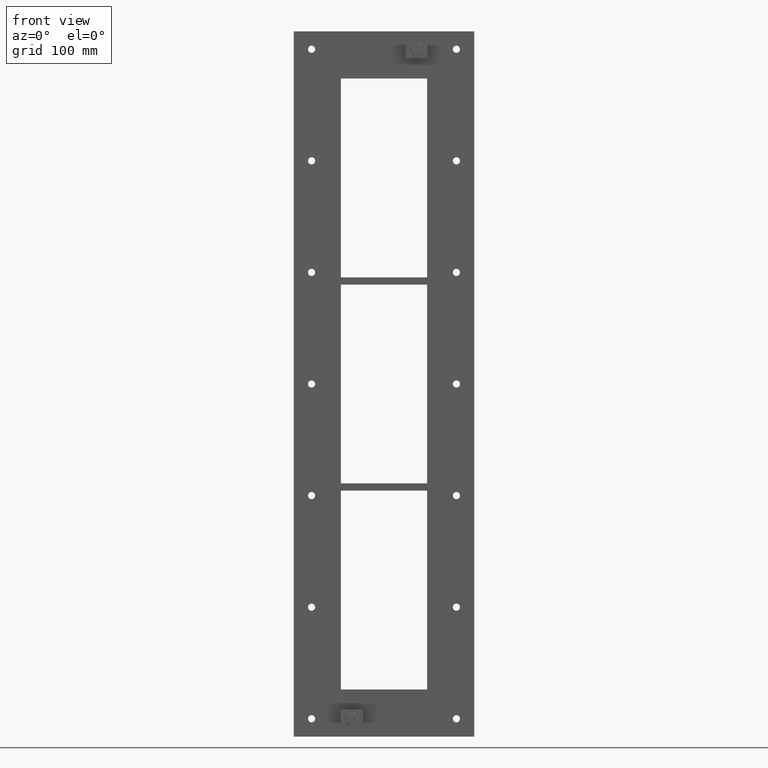
[diagram: clean part render]
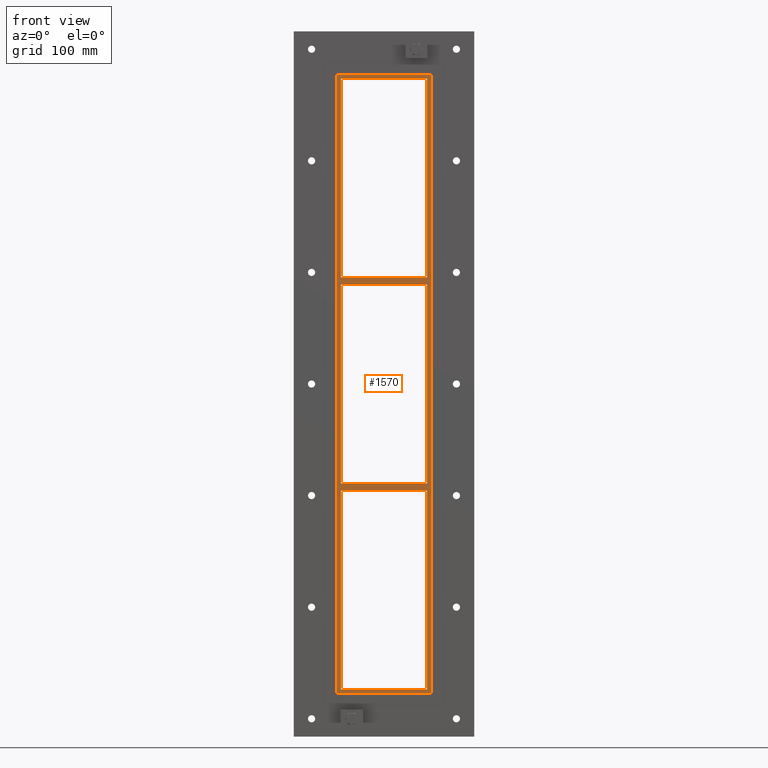
[diagram: same view with one face highlighted and labeled with its STEP entity id]
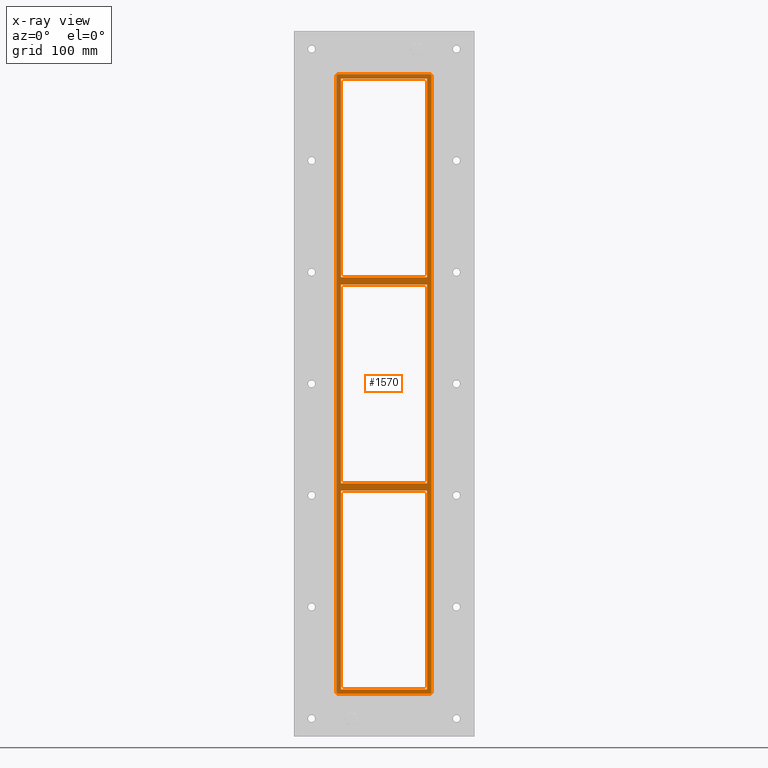
[diagram: x-ray of the same camera — body ghosted, the highlighted face saturated]
A machine part, front view. The second image highlights one B-rep face of the part: STEP entity #1570.
The next image is the same camera in x-ray: the body ghosted, the highlighted face saturated — about 0% of this face is hidden behind the body in this view.
In plain terms, the highlighted planar face has unit normal (0, 1, 0).
Its self-contained STEP definition (entity closure, byte-faithful):
#465=CARTESIAN_POINT('',(60.249999999996362,-3.0,138.99999999998903));
#466=VERTEX_POINT('',#465);
#467=CARTESIAN_POINT('',(-60.249999999998735,-3.0,138.99999999998886));
#468=VERTEX_POINT('',#467);
#469=CARTESIAN_POINT('',(60.249999999996362,-3.0,138.99999999998903));
#470=DIRECTION('',(-1.0,0.0,0.0));
#471=VECTOR('',#470,120.49999999999511);
#472=LINE('',#469,#471);
#473=EDGE_CURVE('',#466,#468,#472,.T.);
#505=CARTESIAN_POINT('',(-60.249999999998735,-3.0,149.00000000000023));
#506=VERTEX_POINT('',#505);
#507=CARTESIAN_POINT('',(60.249999999999595,-3.0,149.00000000000023));
#508=VERTEX_POINT('',#507);
#509=CARTESIAN_POINT('',(-60.249999999998735,-3.0,149.00000000000023));
#510=DIRECTION('',(1.0,0.0,0.0));
#511=VECTOR('',#510,120.49999999999834);
#512=LINE('',#509,#511);
#513=EDGE_CURVE('',#506,#508,#512,.T.);
#554=CARTESIAN_POINT('',(-60.25,-3.0,427.0));
#555=VERTEX_POINT('',#554);
#562=CARTESIAN_POINT('',(-60.25,-3.0,149.00000000000028));
#563=DIRECTION('',(0.0,0.0,1.0));
#564=VECTOR('',#563,277.99999999999983);
#565=LINE('',#562,#564);
#566=EDGE_CURVE('',#506,#555,#565,.T.);
#585=CARTESIAN_POINT('',(60.249999999999595,-3.0,-138.99999999999977));
#586=VERTEX_POINT('',#585);
#593=CARTESIAN_POINT('',(60.25,-3.0,138.99999999998906));
#594=DIRECTION('',(0.0,0.0,-1.0));
#595=VECTOR('',#594,277.99999999998886);
#596=LINE('',#593,#595);
#597=EDGE_CURVE('',#466,#586,#596,.T.);
#608=CARTESIAN_POINT('',(60.25,-3.0,427.0));
#609=VERTEX_POINT('',#608);
#610=CARTESIAN_POINT('',(60.25,-3.0,427.0));
#611=DIRECTION('',(0.0,0.0,-1.0));
#612=VECTOR('',#611,277.99999999999977);
#613=LINE('',#610,#612);
#614=EDGE_CURVE('',#609,#508,#613,.T.);
#638=CARTESIAN_POINT('',(60.249999999996362,-3.0,-149.00000000001097));
#639=VERTEX_POINT('',#638);
#640=CARTESIAN_POINT('',(-60.249999999998735,-3.0,-149.00000000001114));
#641=VERTEX_POINT('',#640);
#642=CARTESIAN_POINT('',(60.249999999996362,-3.0,-149.00000000001097));
#643=DIRECTION('',(-1.0,0.0,0.0));
#644=VECTOR('',#643,120.49999999999511);
#645=LINE('',#642,#644);
#646=EDGE_CURVE('',#639,#641,#645,.T.);
#678=CARTESIAN_POINT('',(-60.249999999998735,-3.0,-138.99999999999977));
#679=VERTEX_POINT('',#678);
#680=CARTESIAN_POINT('',(-60.249999999998735,-3.0,-138.99999999999977));
#681=DIRECTION('',(1.0,0.0,0.0));
#682=VECTOR('',#681,120.49999999999834);
#683=LINE('',#680,#682);
#684=EDGE_CURVE('',#679,#586,#683,.T.);
#710=CARTESIAN_POINT('',(-60.25,-3.0,-138.99999999999977));
#711=DIRECTION('',(0.0,0.0,1.0));
#712=VECTOR('',#711,277.99999999998869);
#713=LINE('',#710,#712);
#714=EDGE_CURVE('',#679,#468,#713,.T.);
#740=CARTESIAN_POINT('',(60.25,-3.0,-427.0));
#741=VERTEX_POINT('',#740);
#748=CARTESIAN_POINT('',(60.25,-3.0,-149.00000000001097));
#749=DIRECTION('',(0.0,0.0,-1.0));
#750=VECTOR('',#749,277.99999999998909);
#751=LINE('',#748,#750);
#752=EDGE_CURVE('',#639,#741,#751,.T.);
#1135=CARTESIAN_POINT('',(-60.25,-3.0,-427.0));
#1136=VERTEX_POINT('',#1135);
#1137=CARTESIAN_POINT('',(-60.25,-3.0,-427.0));
#1138=DIRECTION('',(0.0,0.0,1.0));
#1139=VECTOR('',#1138,277.99999999998886);
#1140=LINE('',#1137,#1139);
#1141=EDGE_CURVE('',#1136,#641,#1140,.T.);
#1166=CARTESIAN_POINT('',(64.25,-3.0,-433.00000000000006));
#1167=VERTEX_POINT('',#1166);
#1174=CARTESIAN_POINT('',(-64.25,-3.0,-433.00000000000006));
#1175=VERTEX_POINT('',#1174);
#1176=CARTESIAN_POINT('',(-64.25,-3.0,-433.00000000000006));
#1177=DIRECTION('',(1.0,0.0,0.0));
#1178=VECTOR('',#1177,128.5);
#1179=LINE('',#1176,#1178);
#1180=EDGE_CURVE('',#1175,#1167,#1179,.T.);
#1228=CARTESIAN_POINT('',(66.25,-3.0,-431.0));
#1229=VERTEX_POINT('',#1228);
#1236=CARTESIAN_POINT('',(64.25,-3.0,-431.0));
#1237=DIRECTION('',(0.0,1.0,0.0));
#1238=DIRECTION('',(0.707106781186541,0.0,-0.707106781186554));
#1239=AXIS2_PLACEMENT_3D('',#1236,#1237,#1238);
#1240=CIRCLE('',#1239,2.0);
#1241=EDGE_CURVE('',#1229,#1167,#1240,.T.);
#1278=CARTESIAN_POINT('',(66.25,-3.0,431.0));
#1279=VERTEX_POINT('',#1278);
#1286=CARTESIAN_POINT('',(66.25,-3.0,-430.99999999999994));
#1287=DIRECTION('',(0.0,0.0,1.0));
#1288=VECTOR('',#1287,862.0);
#1289=LINE('',#1286,#1288);
#1290=EDGE_CURVE('',#1229,#1279,#1289,.T.);
#1303=CARTESIAN_POINT('',(-66.25,-3.0,-431.0));
#1304=VERTEX_POINT('',#1303);
#1305=CARTESIAN_POINT('',(-64.25,-3.0,-431.0));
#1306=DIRECTION('',(0.0,1.0,0.0));
#1307=DIRECTION('',(-0.707106781186541,0.0,-0.707106781186554));
#1308=AXIS2_PLACEMENT_3D('',#1305,#1306,#1307);
#1309=CIRCLE('',#1308,2.0);
#1310=EDGE_CURVE('',#1175,#1304,#1309,.T.);
#1352=CARTESIAN_POINT('',(64.25,-3.0,433.00000000000006));
#1353=VERTEX_POINT('',#1352);
#1360=CARTESIAN_POINT('',(64.25,-3.0,431.0));
#1361=DIRECTION('',(0.0,1.0,0.0));
#1362=DIRECTION('',(0.707106781186541,0.0,0.707106781186554));
#1363=AXIS2_PLACEMENT_3D('',#1360,#1361,#1362);
#1364=CIRCLE('',#1363,2.0);
#1365=EDGE_CURVE('',#1353,#1279,#1364,.T.);
#1378=CARTESIAN_POINT('',(-66.25,-3.0,431.0));
#1379=VERTEX_POINT('',#1378);
#1380=CARTESIAN_POINT('',(-66.25,-3.0,430.99999999999994));
#1381=DIRECTION('',(0.0,0.0,-1.0));
#1382=VECTOR('',#1381,862.0);
#1383=LINE('',#1380,#1382);
#1384=EDGE_CURVE('',#1379,#1304,#1383,.T.);
#1425=CARTESIAN_POINT('',(-64.25,-3.0,433.00000000000006));
#1426=VERTEX_POINT('',#1425);
#1433=CARTESIAN_POINT('',(64.25,-3.0,433.00000000000006));
#1434=DIRECTION('',(-1.0,0.0,0.0));
#1435=VECTOR('',#1434,128.5);
#1436=LINE('',#1433,#1435);
#1437=EDGE_CURVE('',#1353,#1426,#1436,.T.);
#1450=CARTESIAN_POINT('',(-64.25,-3.0,431.0));
#1451=DIRECTION('',(0.0,1.0,0.0));
#1452=DIRECTION('',(-0.707106781186541,0.0,0.707106781186554));
#1453=AXIS2_PLACEMENT_3D('',#1450,#1451,#1452);
#1454=CIRCLE('',#1453,2.0);
#1455=EDGE_CURVE('',#1379,#1426,#1454,.T.);
#1527=CARTESIAN_POINT('',(0.0,-3.0,0.0));
#1528=DIRECTION('',(0.0,1.0,0.0));
#1529=DIRECTION('',(0.0,0.0,1.0));
#1530=AXIS2_PLACEMENT_3D('',#1527,#1528,#1529);
#1531=PLANE('',#1530);
#1532=ORIENTED_EDGE('',*,*,#1310,.F.);
#1533=ORIENTED_EDGE('',*,*,#1180,.T.);
#1534=ORIENTED_EDGE('',*,*,#1241,.F.);
#1535=ORIENTED_EDGE('',*,*,#1290,.T.);
#1536=ORIENTED_EDGE('',*,*,#1365,.F.);
#1537=ORIENTED_EDGE('',*,*,#1437,.T.);
#1538=ORIENTED_EDGE('',*,*,#1455,.F.);
#1539=ORIENTED_EDGE('',*,*,#1384,.T.);
#1540=EDGE_LOOP('',(#1532,#1533,#1534,#1535,#1536,#1537,#1538,#1539));
#1541=FACE_OUTER_BOUND('',#1540,.T.);
#1542=ORIENTED_EDGE('',*,*,#566,.T.);
#1543=CARTESIAN_POINT('',(-60.25,-3.0,427.00000000000011));
#1544=DIRECTION('',(1.0,0.0,0.0));
#1545=VECTOR('',#1544,120.50000000000001);
#1546=LINE('',#1543,#1545);
#1547=EDGE_CURVE('',#555,#609,#1546,.T.);
#1548=ORIENTED_EDGE('',*,*,#1547,.T.);
#1549=ORIENTED_EDGE('',*,*,#614,.T.);
#1550=ORIENTED_EDGE('',*,*,#513,.F.);
#1551=EDGE_LOOP('',(#1542,#1548,#1549,#1550));
#1552=FACE_BOUND('',#1551,.T.);
#1553=ORIENTED_EDGE('',*,*,#473,.F.);
#1554=ORIENTED_EDGE('',*,*,#597,.T.);
#1555=ORIENTED_EDGE('',*,*,#684,.F.);
#1556=ORIENTED_EDGE('',*,*,#714,.T.);
#1557=EDGE_LOOP('',(#1553,#1554,#1555,#1556));
#1558=FACE_BOUND('',#1557,.T.);
#1559=ORIENTED_EDGE('',*,*,#646,.F.);
#1560=ORIENTED_EDGE('',*,*,#752,.T.);
#1561=CARTESIAN_POINT('',(60.25,-3.0,-427.0));
#1562=DIRECTION('',(-1.0,0.0,0.0));
#1563=VECTOR('',#1562,120.50000000000001);
#1564=LINE('',#1561,#1563);
#1565=EDGE_CURVE('',#741,#1136,#1564,.T.);
#1566=ORIENTED_EDGE('',*,*,#1565,.T.);
#1567=ORIENTED_EDGE('',*,*,#1141,.T.);
#1568=EDGE_LOOP('',(#1559,#1560,#1566,#1567));
#1569=FACE_BOUND('',#1568,.T.);
#1570=ADVANCED_FACE('',(#1541,#1552,#1558,#1569),#1531,.F.);